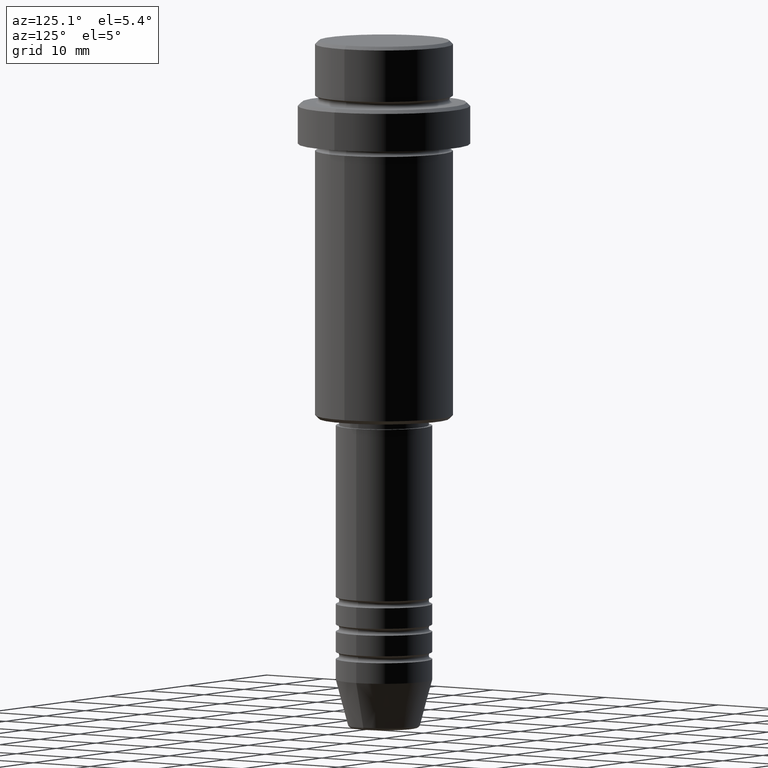
[diagram: clean part render]
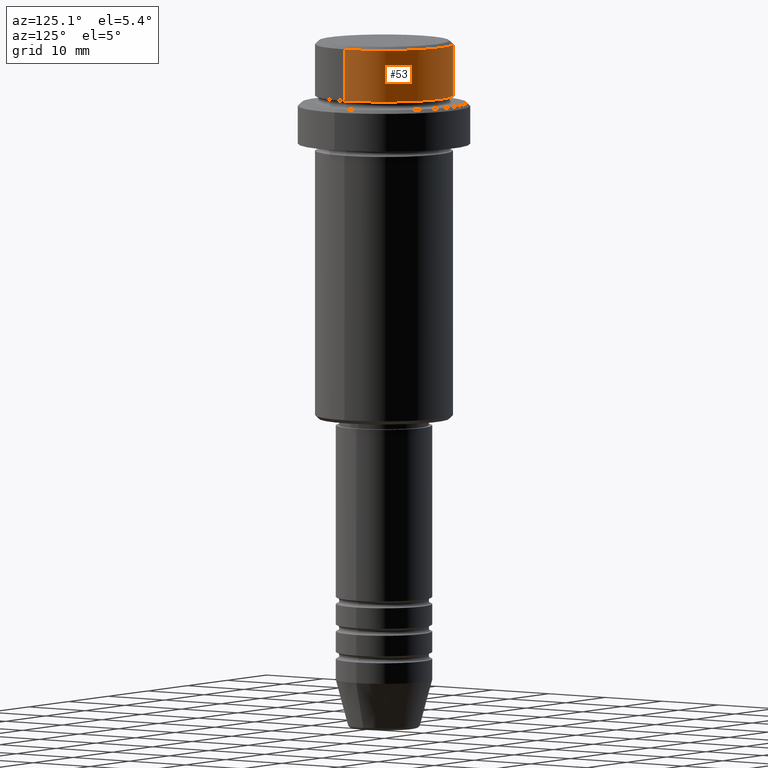
[diagram: same view with one face highlighted and labeled with its STEP entity id]
A machine part, auxiliary view. The second image highlights one B-rep face of the part: STEP entity #53.
In plain terms, the highlighted cylindrical surface (partial cylindrical patch) has radius 10 mm, axis along (-0, -0, 1).
Its self-contained STEP definition (entity closure, byte-faithful):
#53 = ADVANCED_FACE ( 'NONE', ( #1028 ), #1218, .T. ) ;
#90 = CARTESIAN_POINT ( 'NONE',  ( 0.000000000000000000, 0.000000000000000000, -0.5000000000000108802 ) ) ;
#198 = CARTESIAN_POINT ( 'NONE',  ( -9.999999999999998224, 1.224646799147353059E-15, -0.5000000000000108802 ) ) ;
#250 = EDGE_LOOP ( 'NONE', ( #564, #253, #1068, #1391 ) ) ;
#253 = ORIENTED_EDGE ( 'NONE', *, *, #901, .T. ) ;
#280 = DIRECTION ( 'NONE',  ( 1.000000000000000000, 0.000000000000000000, 0.000000000000000000 ) ) ;
#282 = DIRECTION ( 'NONE',  ( 1.000000000000000000, 0.000000000000000000, 0.000000000000000000 ) ) ;
#434 = VERTEX_POINT ( 'NONE', #843 ) ;
#486 = LINE ( 'NONE', #1153, #922 ) ;
#492 = DIRECTION ( 'NONE',  ( 0.000000000000000000, 0.000000000000000000, -1.000000000000000000 ) ) ;
#533 = DIRECTION ( 'NONE',  ( 1.000000000000000000, 0.000000000000000000, 0.000000000000000000 ) ) ;
#564 = ORIENTED_EDGE ( 'NONE', *, *, #811, .T. ) ;
#604 = VECTOR ( 'NONE', #721, 1000.000000000000000 ) ;
#616 = DIRECTION ( 'NONE',  ( -0.000000000000000000, -0.000000000000000000, 1.000000000000000000 ) ) ;
#671 = CIRCLE ( 'NONE', #1251, 9.999999999999998224 ) ;
#672 = CARTESIAN_POINT ( 'NONE',  ( 0.000000000000000000, 0.000000000000000000, 0.000000000000000000 ) ) ;
#721 = DIRECTION ( 'NONE',  ( -0.000000000000000000, -0.000000000000000000, 1.000000000000000000 ) ) ;
#811 = EDGE_CURVE ( 'NONE', #1145, #1338, #1229, .T. ) ;
#816 = LINE ( 'NONE', #1168, #604 ) ;
#841 = CARTESIAN_POINT ( 'NONE',  ( 9.999999999999998224, 0.000000000000000000, -7.999999999999998224 ) ) ;
#843 = CARTESIAN_POINT ( 'NONE',  ( 9.999999999999998224, 0.000000000000000000, -0.5000000000000108802 ) ) ;
#845 = EDGE_CURVE ( 'NONE', #1409, #434, #671, .T. ) ;
#868 = AXIS2_PLACEMENT_3D ( 'NONE', #672, #1105, #282 ) ;
#901 = EDGE_CURVE ( 'NONE', #1338, #1409, #816, .T. ) ;
#922 = VECTOR ( 'NONE', #616, 1000.000000000000000 ) ;
#950 = DIRECTION ( 'NONE',  ( -0.000000000000000000, -0.000000000000000000, 1.000000000000000000 ) ) ;
#993 = AXIS2_PLACEMENT_3D ( 'NONE', #1161, #950, #533 ) ;
#1028 = FACE_OUTER_BOUND ( 'NONE', #250, .T. ) ;
#1068 = ORIENTED_EDGE ( 'NONE', *, *, #845, .T. ) ;
#1105 = DIRECTION ( 'NONE',  ( -0.000000000000000000, -0.000000000000000000, 1.000000000000000000 ) ) ;
#1145 = VERTEX_POINT ( 'NONE', #841 ) ;
#1153 = CARTESIAN_POINT ( 'NONE',  ( 9.999999999999998224, 0.000000000000000000, 0.000000000000000000 ) ) ;
#1161 = CARTESIAN_POINT ( 'NONE',  ( 0.000000000000000000, 0.000000000000000000, -7.999999999999998224 ) ) ;
#1168 = CARTESIAN_POINT ( 'NONE',  ( -9.999999999999998224, 1.224646799147353059E-15, 0.000000000000000000 ) ) ;
#1218 = CYLINDRICAL_SURFACE ( 'NONE', #868, 9.999999999999998224 ) ;
#1229 = CIRCLE ( 'NONE', #993, 9.999999999999998224 ) ;
#1251 = AXIS2_PLACEMENT_3D ( 'NONE', #90, #492, #280 ) ;
#1264 = CARTESIAN_POINT ( 'NONE',  ( -9.999999999999998224, 1.224646799147353059E-15, -7.999999999999998224 ) ) ;
#1293 = EDGE_CURVE ( 'NONE', #1145, #434, #486, .T. ) ;
#1338 = VERTEX_POINT ( 'NONE', #1264 ) ;
#1391 = ORIENTED_EDGE ( 'NONE', *, *, #1293, .F. ) ;
#1409 = VERTEX_POINT ( 'NONE', #198 ) ;